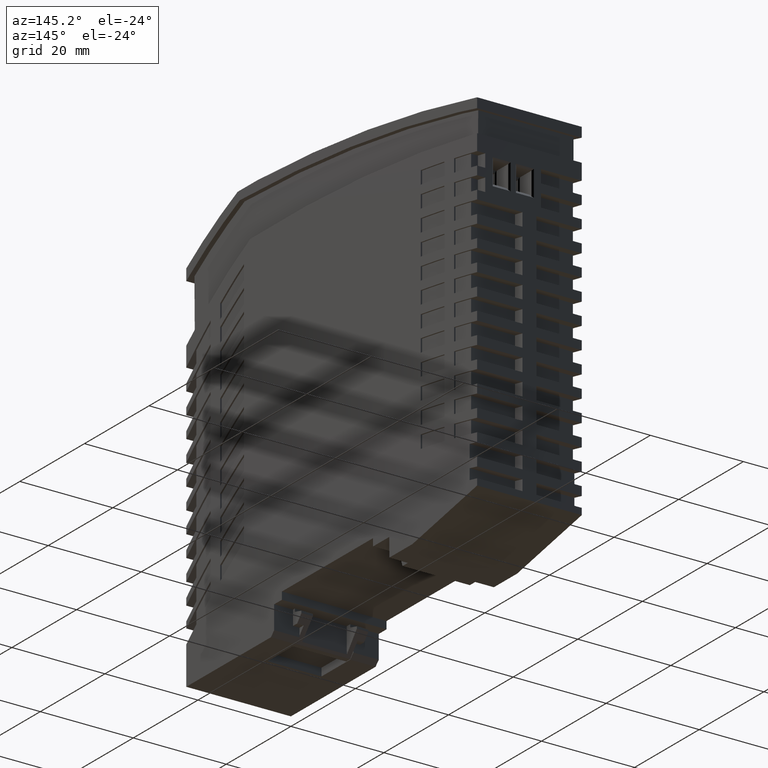
[diagram: clean part render]
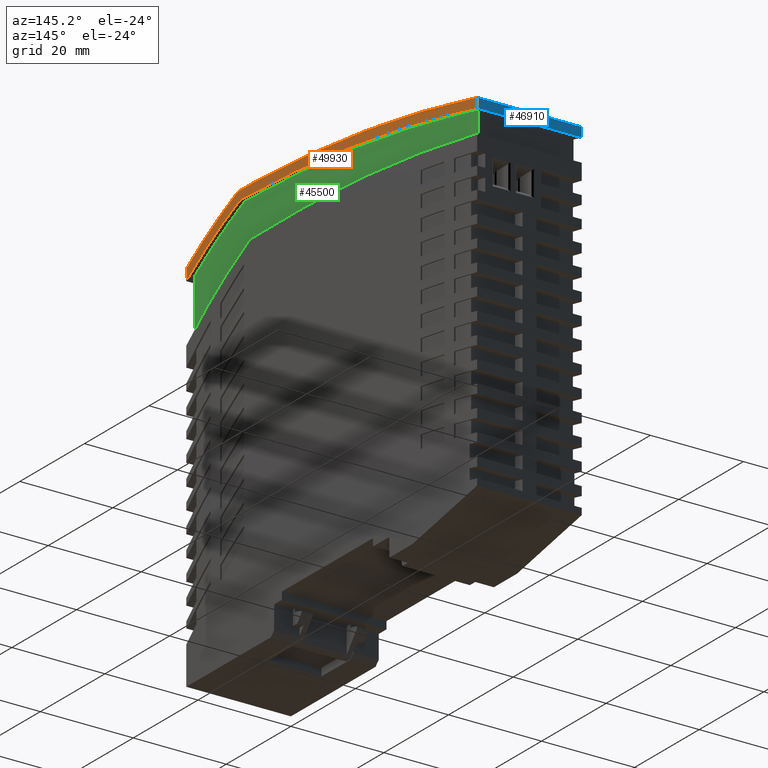
[diagram: same view with three faces highlighted in distinct colors, each labeled with its STEP entity id]
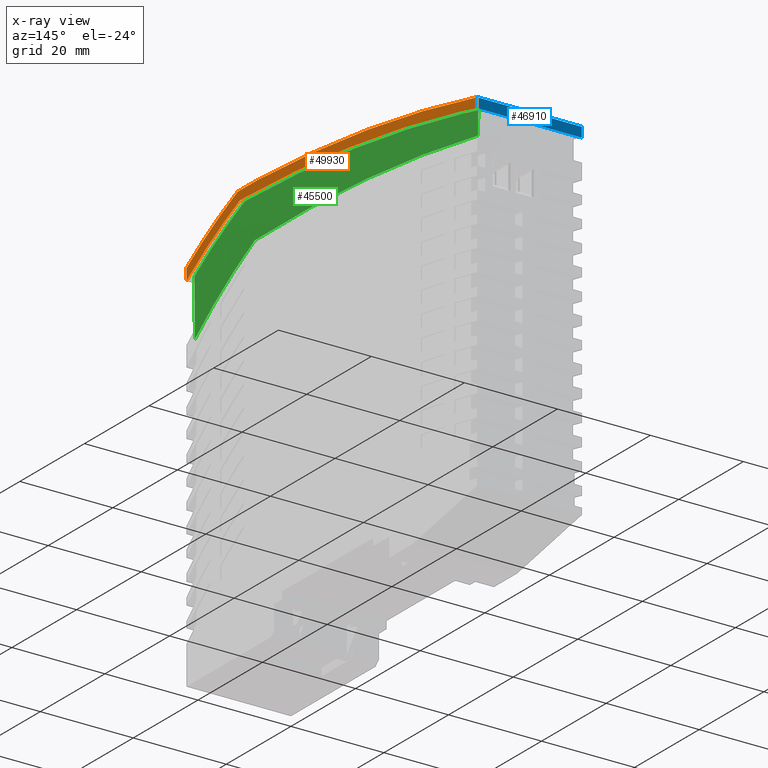
[diagram: x-ray of the same camera — body ghosted, the three highlighted faces saturated]
A machine part, auxiliary view with three faces highlighted in distinct colors.
The next image is the same camera in x-ray (body ghosted, the three faces saturated) — at least one of them is partly hidden behind the body in this view.
Their STEP definitions:

[orange] entity #49930 — the highlighted planar face has unit normal (1, 0, 0).
#23190=CARTESIAN_POINT('',(44.998476392647,81.0753589982581,1.));
#23200=VERTEX_POINT('',#23190);
#23230=CARTESIAN_POINT('',(-33.8174223565983,-259.934984106395,1.));
#23240=DIRECTION('',(0.,0.,1.));
#23250=DIRECTION('',(0.,1.,0.));
#23260=AXIS2_PLACEMENT_3D('',#23230,#23240,#23250);
#23270=CIRCLE('',#23260,350.000000000006);
#23280=CARTESIAN_POINT('',(-23.0409203779481,89.8990722762113,1.));
#23290=VERTEX_POINT('',#23280);
#23300=EDGE_CURVE('',#23200,#23290,#23270,.T.);
#45680=CARTESIAN_POINT('',(-28.3867095319688,88.0226388280952,1.));
#45690=VERTEX_POINT('',#45680);
#45720=CARTESIAN_POINT('',(-33.8174223565965,-259.934984106387,1.));
#45730=DIRECTION('',(0.,0.,1.));
#45740=DIRECTION('',(0.,1.,0.));
#45750=AXIS2_PLACEMENT_3D('',#45720,#45730,#45740);
#45760=CIRCLE('',#45750,347.999999999998);
#45770=CARTESIAN_POINT('',(39.218210283461,80.3146248057549,1.));
#45780=VERTEX_POINT('',#45770);
#45790=EDGE_CURVE('',#45780,#45690,#45760,.T.);
#46150=CARTESIAN_POINT('',(-45.0015236073532,78.4462417058568,1.));
#46160=VERTEX_POINT('',#46150);
#46190=CARTESIAN_POINT('',(0.,110.04848302035,1.));
#46200=DIRECTION('',(0.818366609781339,0.574696521648599,0.));
#46210=VECTOR('',#46200,1.);
#46220=LINE('',#46190,#46210);
#46230=CARTESIAN_POINT('',(-43.8015236073672,79.2889396088841,1.));
#46240=VERTEX_POINT('',#46230);
#46250=EDGE_CURVE('',#46160,#46240,#46220,.T.);
#46730=CARTESIAN_POINT('',(44.9984763926468,0.,1.));
#46740=DIRECTION('',(0.,1.,0.));
#46750=VECTOR('',#46740,1.);
#46760=LINE('',#46730,#46750);
#46770=CARTESIAN_POINT('',(44.9984763926468,78.9759602940228,1.));
#46780=VERTEX_POINT('',#46770);
#46790=EDGE_CURVE('',#46780,#23200,#46760,.T.);
#47050=CARTESIAN_POINT('',(0.198476392632898,89.8990722762113,1.));
#47060=DIRECTION('',(-1.,0.,0.));
#47070=VECTOR('',#47060,1.);
#47080=LINE('',#47050,#47070);
#47090=CARTESIAN_POINT('',(-29.0910272099849,89.8990722762113,1.));
#47100=VERTEX_POINT('',#47090);
#47110=EDGE_CURVE('',#23290,#47100,#47080,.T.);
#49400=CARTESIAN_POINT('',(12.017640978483,-1.26055365418858,1.));
#49410=DIRECTION('',(0.,0.,1.));
#49420=DIRECTION('',(0.,1.,0.));
#49430=AXIS2_PLACEMENT_3D('',#49400,#49410,#49420);
#49440=CIRCLE('',#49430,97.9999999999999);
#49450=EDGE_CURVE('',#45690,#46240,#49440,.T.);
#49590=CARTESIAN_POINT('',(8.13804923089981,86.5339520767538,1.));
#49600=DIRECTION('',(0.,0.,1.));
#49610=DIRECTION('',(1.,0.,0.));
#49620=AXIS2_PLACEMENT_3D('',#49590,#49600,#49610);
#49630=PLANE('',#49620);
#49640=CARTESIAN_POINT('',(12.017640978482,-1.26055365418718,1.));
#49650=DIRECTION('',(0.,0.,1.));
#49660=DIRECTION('',(0.,1.,0.));
#49670=AXIS2_PLACEMENT_3D('',#49640,#49650,#49660);
#49680=CIRCLE('',#49670,99.9999999999983);
#49690=CARTESIAN_POINT('',(-45.0015236073532,80.8906171830753,1.));
#49700=VERTEX_POINT('',#49690);
#49710=EDGE_CURVE('',#47100,#49700,#49680,.T.);
#49720=ORIENTED_EDGE('',*,*,#49710,.T.);
#49730=ORIENTED_EDGE('',*,*,#47110,.T.);
#49740=ORIENTED_EDGE('',*,*,#23300,.T.);
#49750=ORIENTED_EDGE('',*,*,#46790,.T.);
#49760=CARTESIAN_POINT('',(0.,89.3972561809237,1.));
#49770=DIRECTION('',(-0.974215235442107,0.225620644074253,0.));
#49780=VECTOR('',#49770,1.);
#49790=LINE('',#49760,#49780);
#49800=EDGE_CURVE('',#46780,#45780,#49790,.T.);
#49810=ORIENTED_EDGE('',*,*,#49800,.F.);
#49820=ORIENTED_EDGE('',*,*,#45790,.F.);
#49830=ORIENTED_EDGE('',*,*,#49450,.F.);
#49840=ORIENTED_EDGE('',*,*,#46250,.T.);
#49850=CARTESIAN_POINT('',(-45.0015236073532,0.,1.));
#49860=DIRECTION('',(0.,-1.,0.));
#49870=VECTOR('',#49860,1.);
#49880=LINE('',#49850,#49870);
#49890=EDGE_CURVE('',#49700,#46160,#49880,.T.);
#49900=ORIENTED_EDGE('',*,*,#49890,.T.);
#49910=EDGE_LOOP('',(#49900,#49840,#49830,#49820,#49810,#49750,#49740,
#49730,#49720));
#49920=FACE_OUTER_BOUND('',#49910,.T.);
#49930=ADVANCED_FACE('',(#49920),#49630,.T.);

[blue] entity #46910 — the highlighted planar face has unit normal (0, 1, 0).
#23110=CARTESIAN_POINT('',(44.998476392647,81.0753589982581,-21.5));
#23120=VERTEX_POINT('',#23110);
#23150=CARTESIAN_POINT('',(44.998476392647,81.0753589982581,1.));
#23160=DIRECTION('',(0.,0.,1.));
#23170=VECTOR('',#23160,1.);
#23180=LINE('',#23150,#23170);
#23190=CARTESIAN_POINT('',(44.998476392647,81.0753589982581,1.));
#23200=VERTEX_POINT('',#23190);
#23210=EDGE_CURVE('',#23120,#23200,#23180,.T.);
#29480=CARTESIAN_POINT('',(44.9984763926468,78.9759602940228,-21.5));
#29490=VERTEX_POINT('',#29480);
#29520=CARTESIAN_POINT('',(44.9984763926468,0.,-21.5));
#29530=DIRECTION('',(0.,1.,0.));
#29540=VECTOR('',#29530,1.);
#29550=LINE('',#29520,#29540);
#29560=EDGE_CURVE('',#29490,#23120,#29550,.T.);
#46680=CARTESIAN_POINT('',(44.9984763926468,-9.97092772378862,1.));
#46690=DIRECTION('',(1.,0.,0.));
#46700=DIRECTION('',(0.,1.,0.));
#46710=AXIS2_PLACEMENT_3D('',#46680,#46690,#46700);
#46720=PLANE('',#46710);
#46730=CARTESIAN_POINT('',(44.9984763926468,0.,1.));
#46740=DIRECTION('',(0.,1.,0.));
#46750=VECTOR('',#46740,1.);
#46760=LINE('',#46730,#46750);
#46770=CARTESIAN_POINT('',(44.9984763926468,78.9759602940228,1.));
#46780=VERTEX_POINT('',#46770);
#46790=EDGE_CURVE('',#46780,#23200,#46760,.T.);
#46800=ORIENTED_EDGE('',*,*,#46790,.F.);
#46810=ORIENTED_EDGE('',*,*,#23210,.T.);
#46820=ORIENTED_EDGE('',*,*,#29560,.T.);
#46830=CARTESIAN_POINT('',(44.9984763926468,78.9759602940228,0.));
#46840=DIRECTION('',(0.,0.,1.));
#46850=VECTOR('',#46840,1.);
#46860=LINE('',#46830,#46850);
#46870=EDGE_CURVE('',#29490,#46780,#46860,.T.);
#46880=ORIENTED_EDGE('',*,*,#46870,.F.);
#46890=EDGE_LOOP('',(#46880,#46820,#46810,#46800));
#46900=FACE_OUTER_BOUND('',#46890,.T.);
#46910=ADVANCED_FACE('',(#46900),#46720,.T.);

[green] entity #45500 — the highlighted planar face has unit normal (1, 0, 0).
#8920=CARTESIAN_POINT('',(-43.215851796274,0.,0.));
#8930=DIRECTION('',(0.00872653549837375,-0.999961923064171,0.));
#8940=VECTOR('',#8930,1.);
#8950=LINE('',#8920,#8940);
#8960=CARTESIAN_POINT('',(-43.9071485745402,79.2147646602632,0.));
#8970=VERTEX_POINT('',#8960);
#8980=CARTESIAN_POINT('',(-43.8004748452349,66.9911660149067,0.));
#8990=VERTEX_POINT('',#8980);
#9000=EDGE_CURVE('',#8970,#8990,#8950,.T.);
#10900=CARTESIAN_POINT('',(19.7066423710768,-8.36763282685864,0.));
#10910=DIRECTION('',(0.,0.,1.));
#10920=DIRECTION('',(-0.455955103889732,0.890002777095051,0.));
#10930=AXIS2_PLACEMENT_3D('',#10900,#10910,#10920);
#10940=CIRCLE('',#10930,98.55);
#10950=CARTESIAN_POINT('',(-25.2277331172552,79.3421408558592,0.));
#10960=VERTEX_POINT('',#10950);
#10970=EDGE_CURVE('',#10960,#8990,#10940,.T.);
#44920=CARTESIAN_POINT('',(8.1380492309038,82.0977916081144,0.));
#44930=DIRECTION('',(0.,0.,1.));
#44940=DIRECTION('',(1.,0.,0.));
#44950=AXIS2_PLACEMENT_3D('',#44920,#44930,#44940);
#44960=PLANE('',#44950);
#44970=CARTESIAN_POINT('',(43.2128045815677,0.,0.));
#44980=DIRECTION('',(0.00872653549837375,0.999961923064171,0.));
#44990=VECTOR('',#44980,1.);
#45000=LINE('',#44970,#44990);
#45010=CARTESIAN_POINT('',(43.8615452371132,74.338316002966,0.));
#45020=VERTEX_POINT('',#45010);
#45030=CARTESIAN_POINT('',(43.9042289013603,79.229379471612,0.));
#45040=VERTEX_POINT('',#45030);
#45050=EDGE_CURVE('',#45020,#45040,#45000,.T.);
#45060=ORIENTED_EDGE('',*,*,#45050,.T.);
#45070=CARTESIAN_POINT('',(-15.7001371396532,-268.577429468789,0.));
#45080=DIRECTION('',(0.,0.,1.));
#45090=DIRECTION('',(0.171523095912363,0.985180099052269,0.));
#45100=AXIS2_PLACEMENT_3D('',#45070,#45080,#45090);
#45110=CIRCLE('',#45100,348.05);
#45120=EDGE_CURVE('',#45020,#10960,#45110,.T.);
#45130=ORIENTED_EDGE('',*,*,#45120,.F.);
#45140=ORIENTED_EDGE('',*,*,#10970,.F.);
#45150=ORIENTED_EDGE('',*,*,#9000,.T.);
#45160=CARTESIAN_POINT('',(0.,110.04848302035,0.));
#45170=DIRECTION('',(-0.818366609781339,-0.574696521648599,0.));
#45180=VECTOR('',#45170,1.);
#45190=LINE('',#45160,#45180);
#45200=CARTESIAN_POINT('',(-43.8015236073672,79.2889396088841,0.));
#45210=VERTEX_POINT('',#45200);
#45220=EDGE_CURVE('',#45210,#8970,#45190,.T.);
#45230=ORIENTED_EDGE('',*,*,#45220,.T.);
#45240=CARTESIAN_POINT('',(12.017640978483,-1.26055365418858,0.));
#45250=DIRECTION('',(0.,0.,1.));
#45260=DIRECTION('',(0.,1.,0.));
#45270=AXIS2_PLACEMENT_3D('',#45240,#45250,#45260);
#45280=CIRCLE('',#45270,97.9999999999999);
#45290=CARTESIAN_POINT('',(-28.3867095319688,88.0226388280952,0.));
#45300=VERTEX_POINT('',#45290);
#45310=EDGE_CURVE('',#45300,#45210,#45280,.T.);
#45320=ORIENTED_EDGE('',*,*,#45310,.T.);
#45330=CARTESIAN_POINT('',(-33.8174223565965,-259.934984106387,0.));
#45340=DIRECTION('',(0.,0.,1.));
#45350=DIRECTION('',(0.,1.,0.));
#45360=AXIS2_PLACEMENT_3D('',#45330,#45340,#45350);
#45370=CIRCLE('',#45360,347.999999999998);
#45380=CARTESIAN_POINT('',(39.218210283461,80.3146248057549,0.));
#45390=VERTEX_POINT('',#45380);
#45400=EDGE_CURVE('',#45390,#45300,#45370,.T.);
#45410=ORIENTED_EDGE('',*,*,#45400,.T.);
#45420=CARTESIAN_POINT('',(0.,89.3972561809237,0.));
#45430=DIRECTION('',(0.974215235442107,-0.225620644074253,0.));
#45440=VECTOR('',#45430,1.);
#45450=LINE('',#45420,#45440);
#45460=EDGE_CURVE('',#45390,#45040,#45450,.T.);
#45470=ORIENTED_EDGE('',*,*,#45460,.F.);
#45480=EDGE_LOOP('',(#45470,#45410,#45320,#45230,#45150,#45140,#45130,
#45060));
#45490=FACE_OUTER_BOUND('',#45480,.T.);
#45500=ADVANCED_FACE('',(#45490),#44960,.T.);